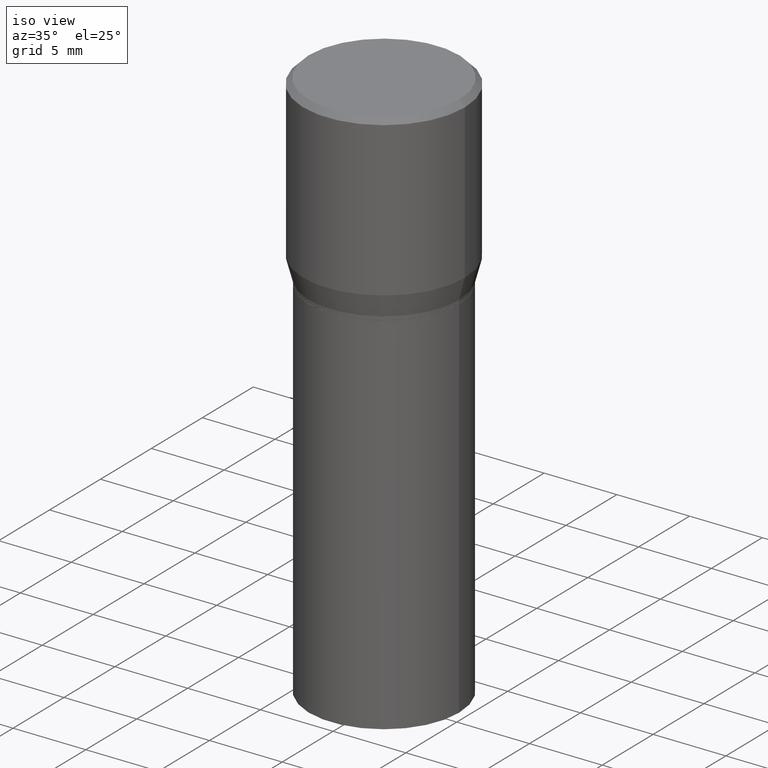
[diagram: clean part render]
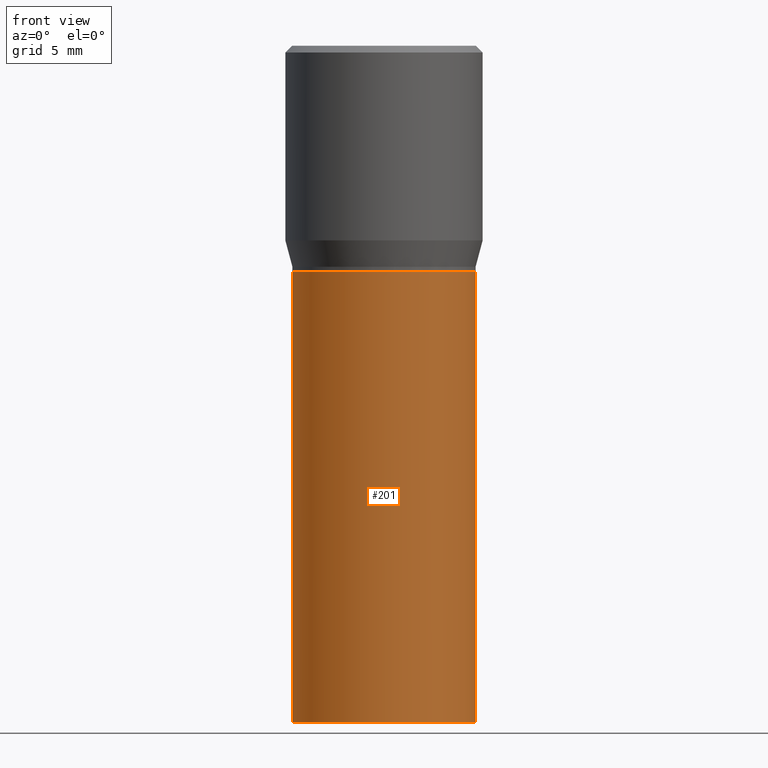
[diagram: tour spotlight — one face highlighted and labeled with its STEP entity id]
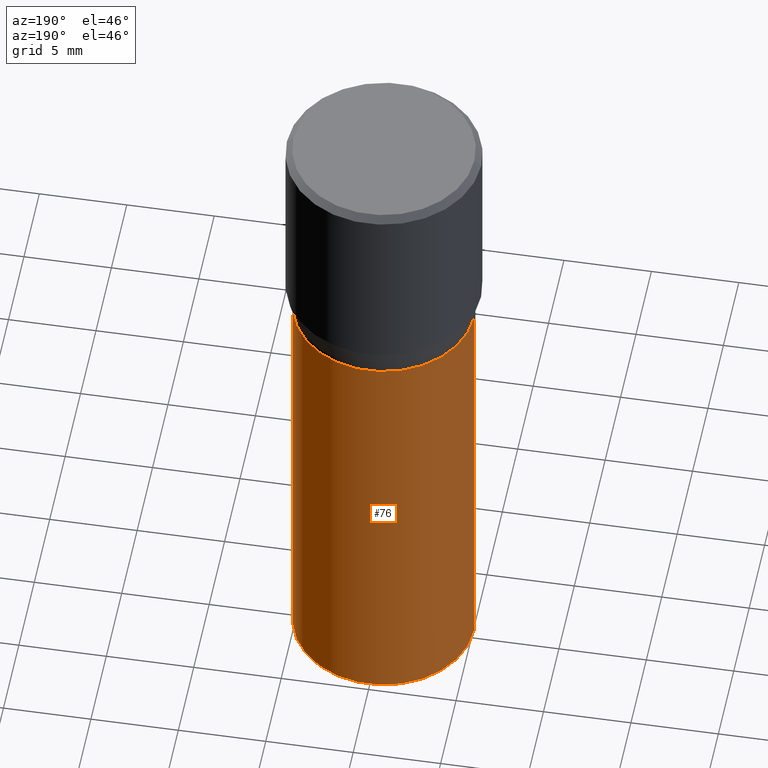
[diagram: tour spotlight — one face highlighted and labeled with its STEP entity id]
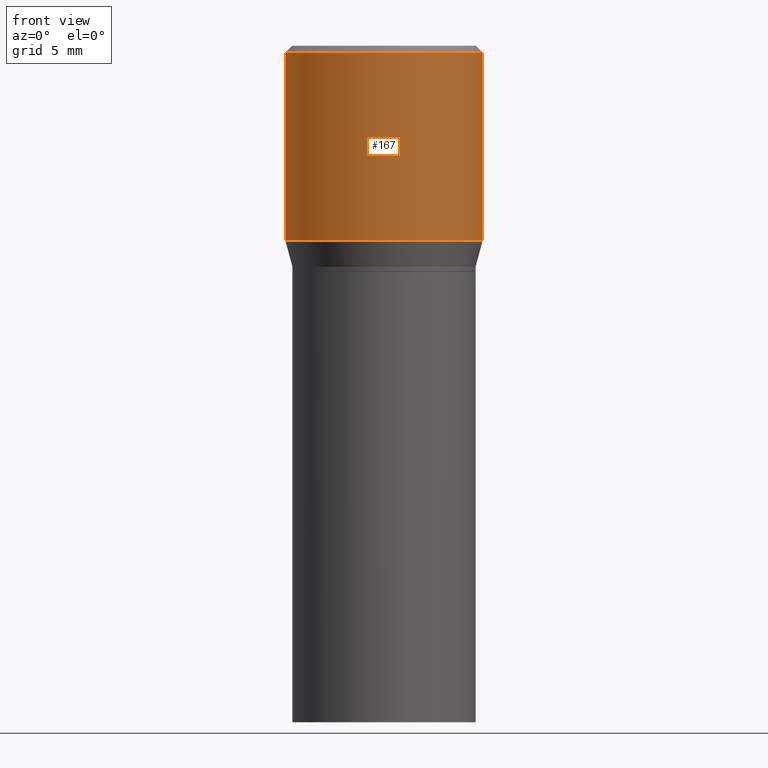
[diagram: tour spotlight — one face highlighted and labeled with its STEP entity id]
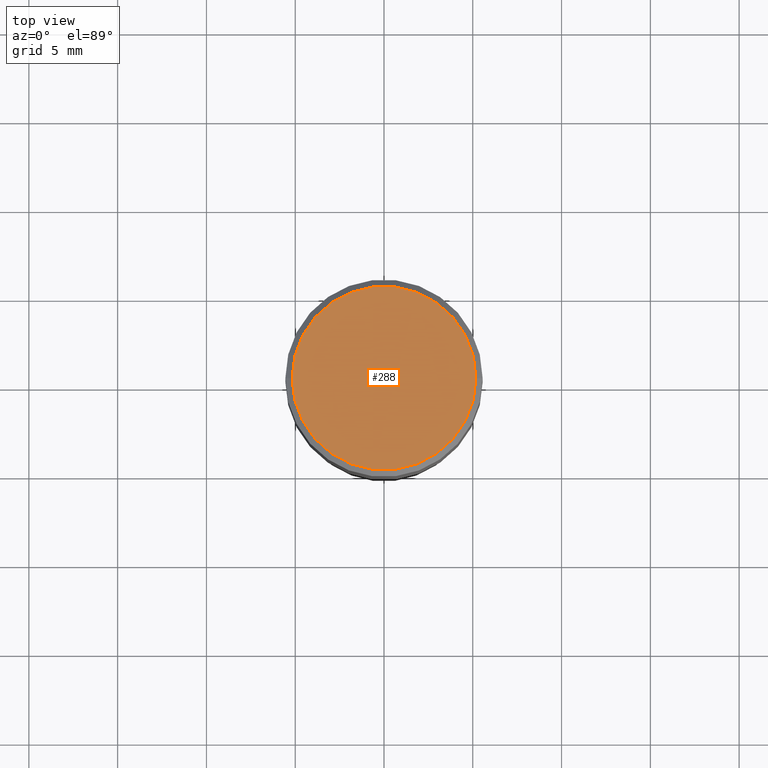
[diagram: tour spotlight — one face highlighted and labeled with its STEP entity id]
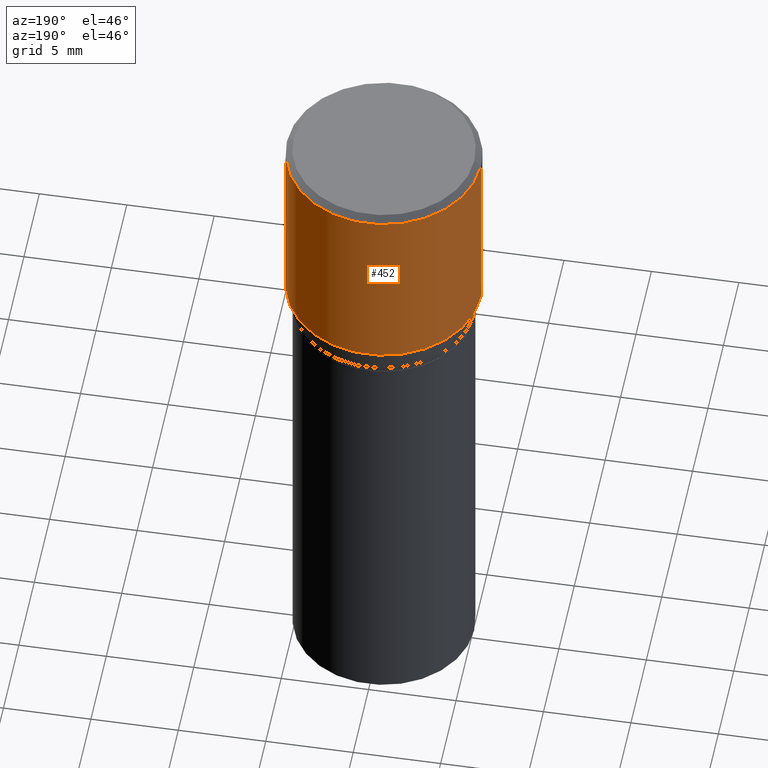
[diagram: tour spotlight — one face highlighted and labeled with its STEP entity id]
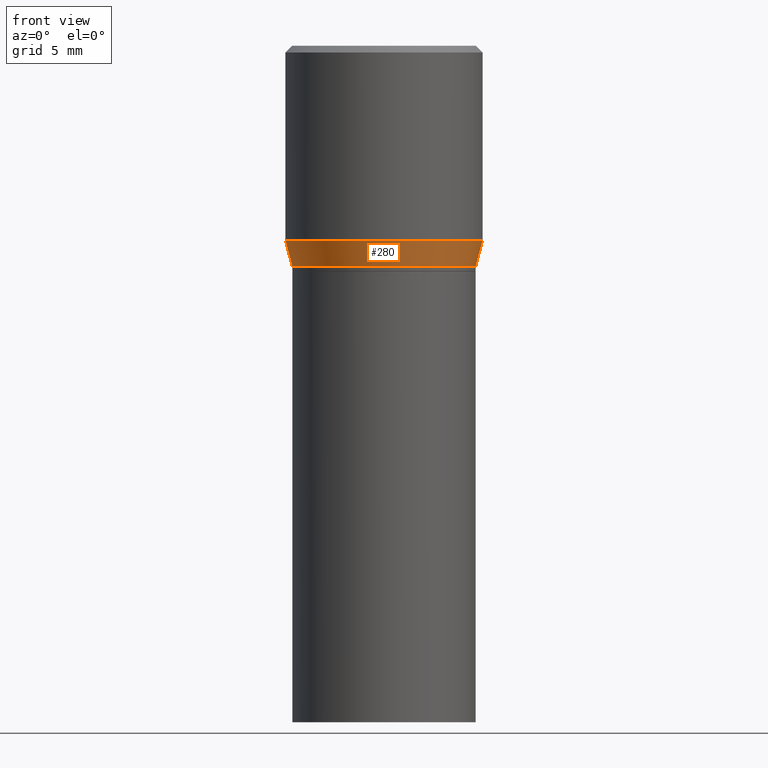
[diagram: tour spotlight — one face highlighted and labeled with its STEP entity id]
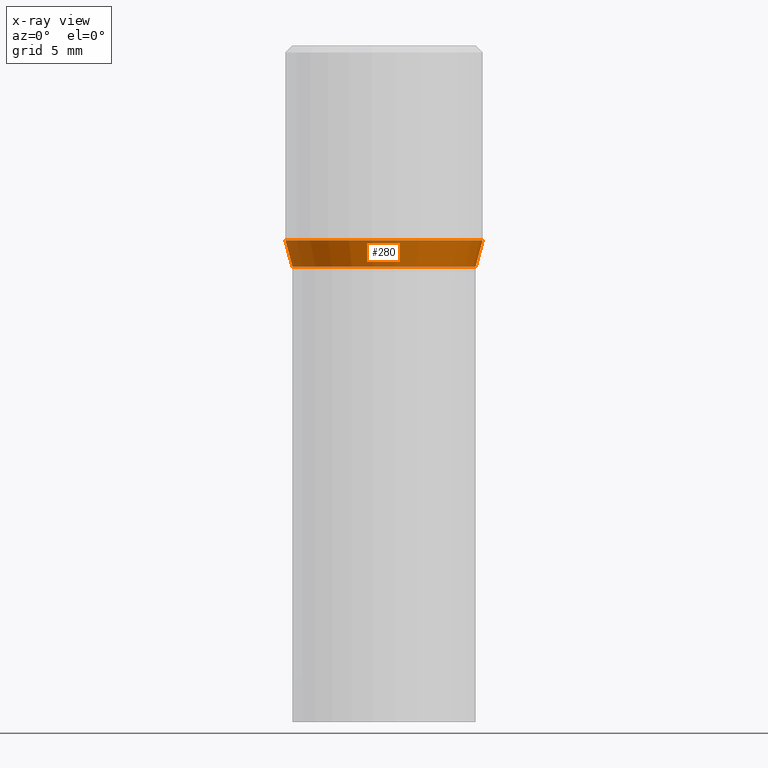
[diagram: x-ray of the same camera — body ghosted, this tour face saturated]
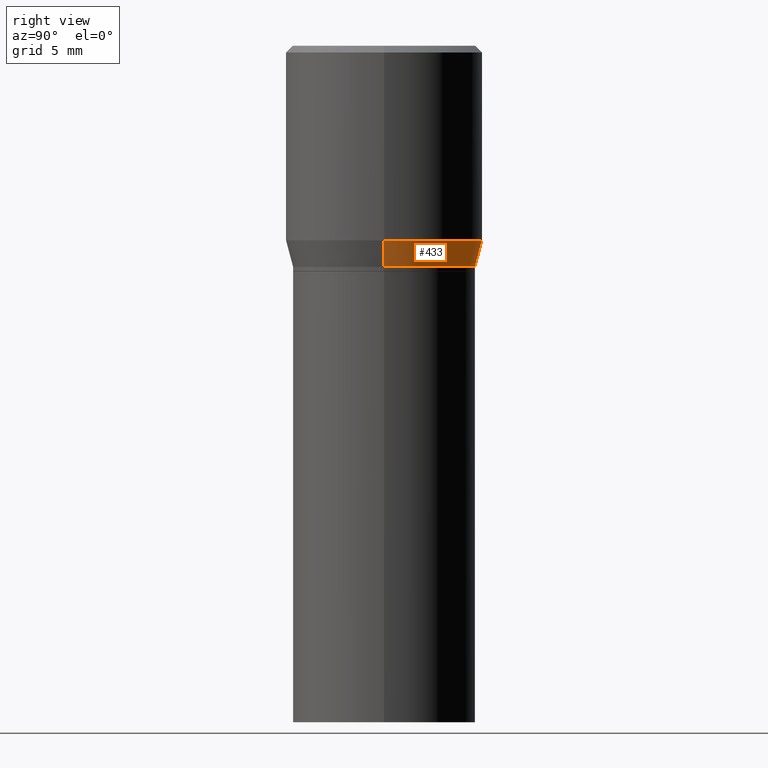
[diagram: tour spotlight — one face highlighted and labeled with its STEP entity id]
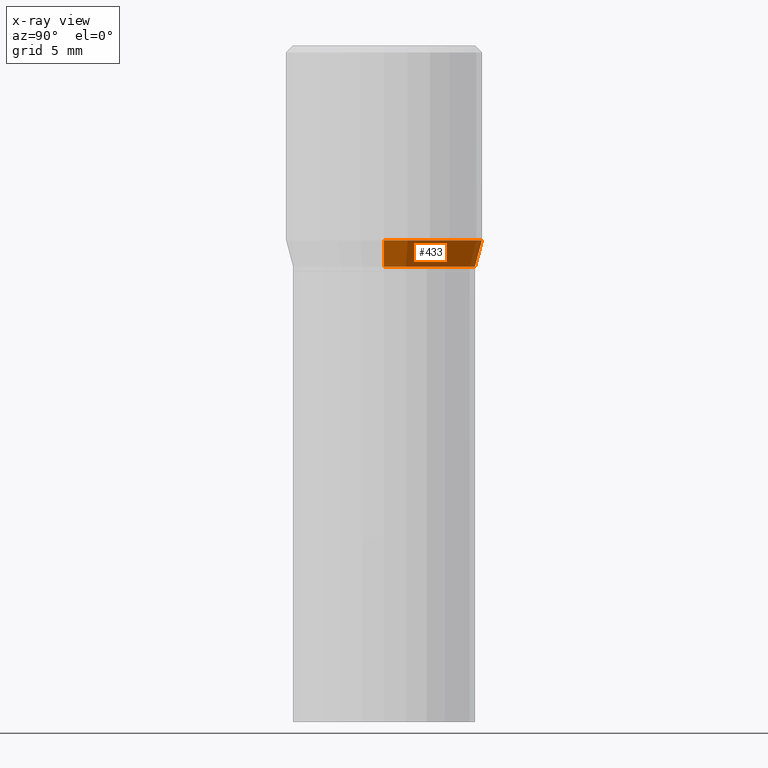
[diagram: x-ray of the same camera — body ghosted, this tour face saturated]
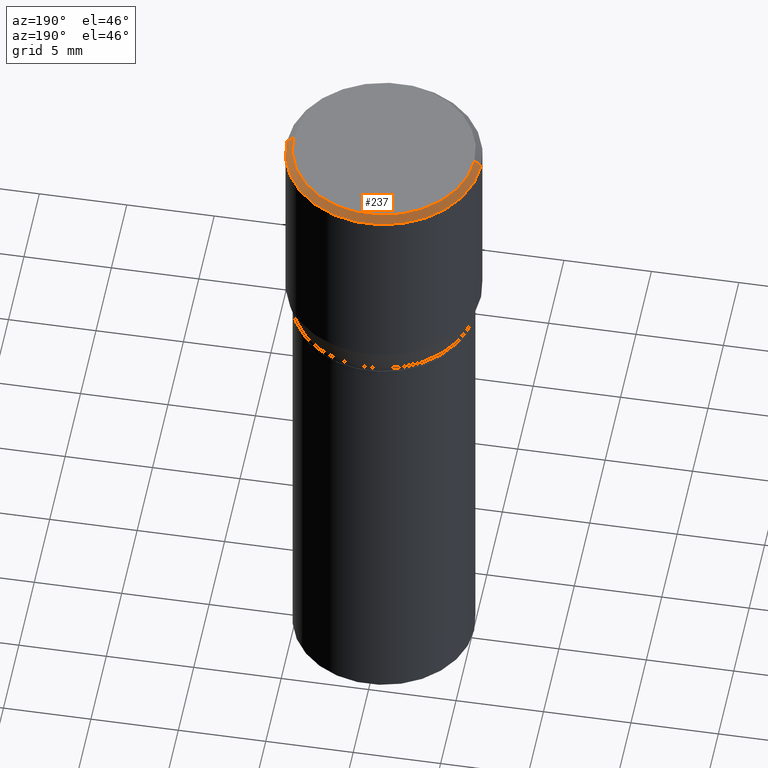
[diagram: tour spotlight — one face highlighted and labeled with its STEP entity id]
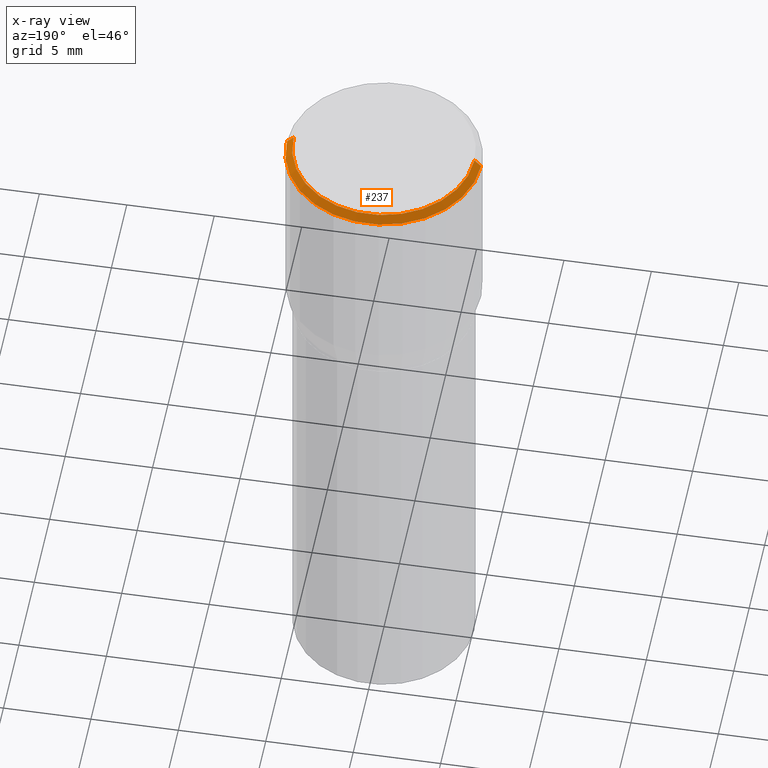
[diagram: x-ray of the same camera — body ghosted, this tour face saturated]
A machine part: a face-by-face anatomy tour. The part has 16 B-rep faces; the first image is the clean iso view, then the 8 largest visible faces are spotlighted one at a time (largest first), each with its STEP entity span.

Face 1 — front view, entity #201. In plain terms, the highlighted cylindrical surface (partial cylindrical patch) has radius 5.1587 mm, axis along (-0, 0, 1).
Definition (entity closure, byte-faithful):
#15 = CARTESIAN_POINT ( 'NONE',  ( -0.2031000000000000028, -2.048369042514382480E-15, -0.5000000000000001110 ) ) ;
#17 = VECTOR ( 'NONE', #394, 39.37007874015748143 ) ;
#19 = LINE ( 'NONE', #447, #87 ) ;
#24 = VERTEX_POINT ( 'NONE', #15 ) ;
#30 = CIRCLE ( 'NONE', #39, 0.2031000000000000028 ) ;
#39 = AXIS2_PLACEMENT_3D ( 'NONE', #315, #54, #387 ) ;
#54 = DIRECTION ( 'NONE',  ( -2.445468806185136597E-29, 3.491481338843145583E-15, 1.000000000000000000 ) ) ;
#69 = AXIS2_PLACEMENT_3D ( 'NONE', #102, #72, #219 ) ;
#72 = DIRECTION ( 'NONE',  ( -2.445468806185136597E-29, 3.491481338843145583E-15, 1.000000000000000000 ) ) ;
#85 = DIRECTION ( 'NONE',  ( 1.000000000000000000, -6.982962677686266711E-15, 4.876176775795935793E-29 ) ) ;
#87 = VECTOR ( 'NONE', #127, 39.37007874015748143 ) ;
#102 = CARTESIAN_POINT ( 'NONE',  ( 1.222734403092568719E-29, -1.745740669421573186E-15, -0.5000000000000001110 ) ) ;
#106 = CARTESIAN_POINT ( 'NONE',  ( 0.2031000000000000028, -3.163980389259653764E-15, -0.5000000000000001110 ) ) ;
#108 = CARTESIAN_POINT ( 'NONE',  ( 0.2031000000000000028, -6.655461728102798952E-15, -1.500000000000000222 ) ) ;
#112 = CARTESIAN_POINT ( 'NONE',  ( -0.2031000000000000028, -2.048369042514382480E-15, -1.500000000000000222 ) ) ;
#127 = DIRECTION ( 'NONE',  ( -2.445468806185136877E-29, 3.491481338843145188E-15, 1.000000000000000000 ) ) ;
#135 = FACE_OUTER_BOUND ( 'NONE', #424, .T. ) ;
#146 = VERTEX_POINT ( 'NONE', #106 ) ;
#155 = ORIENTED_EDGE ( 'NONE', *, *, #259, .T. ) ;
#181 = VERTEX_POINT ( 'NONE', #112 ) ;
#201 = ADVANCED_FACE ( 'NONE', ( #135 ), #426, .T. ) ;
#219 = DIRECTION ( 'NONE',  ( 1.000000000000000000, -6.982962677686265922E-15, 0.000000000000000000 ) ) ;
#234 = CARTESIAN_POINT ( 'NONE',  ( 0.000000000000000000, 0.000000000000000000, 0.000000000000000000 ) ) ;
#241 = AXIS2_PLACEMENT_3D ( 'NONE', #234, #308, #85 ) ;
#259 = EDGE_CURVE ( 'NONE', #181, #388, #30, .T. ) ;
#289 = ORIENTED_EDGE ( 'NONE', *, *, #301, .F. ) ;
#301 = EDGE_CURVE ( 'NONE', #181, #24, #312, .T. ) ;
#308 = DIRECTION ( 'NONE',  ( -2.445468806185136597E-29, 3.491481338843145583E-15, 1.000000000000000000 ) ) ;
#312 = LINE ( 'NONE', #454, #17 ) ;
#315 = CARTESIAN_POINT ( 'NONE',  ( 3.668203209277704895E-29, -5.237222008264718177E-15, -1.500000000000000222 ) ) ;
#340 = EDGE_CURVE ( 'NONE', #388, #146, #19, .T. ) ;
#353 = ORIENTED_EDGE ( 'NONE', *, *, #411, .F. ) ;
#356 = CIRCLE ( 'NONE', #69, 0.2031000000000000028 ) ;
#358 = ORIENTED_EDGE ( 'NONE', *, *, #340, .T. ) ;
#387 = DIRECTION ( 'NONE',  ( 1.000000000000000000, -6.982962677686264344E-15, 0.000000000000000000 ) ) ;
#388 = VERTEX_POINT ( 'NONE', #108 ) ;
#394 = DIRECTION ( 'NONE',  ( -2.445468806185136877E-29, 3.491481338843145188E-15, 1.000000000000000000 ) ) ;
#411 = EDGE_CURVE ( 'NONE', #24, #146, #356, .T. ) ;
#424 = EDGE_LOOP ( 'NONE', ( #289, #155, #358, #353 ) ) ;
#426 = CYLINDRICAL_SURFACE ( 'NONE', #241, 0.2031000000000000028 ) ;
#447 = CARTESIAN_POINT ( 'NONE',  ( 0.2031000000000000028, -1.418239719838080775E-15, 9.903515031641546145E-30 ) ) ;
#454 = CARTESIAN_POINT ( 'NONE',  ( -0.2031000000000000028, 1.443112296328763497E-15, -9.990357168307714203E-30 ) ) ;

Face 2 — auxiliary view, entity #76. In plain terms, the highlighted cylindrical surface (partial cylindrical patch) has radius 5.1587 mm, axis along (-0, 0, 1).
Definition (entity closure, byte-faithful):
#3 = AXIS2_PLACEMENT_3D ( 'NONE', #270, #342, #61 ) ;
#15 = CARTESIAN_POINT ( 'NONE',  ( -0.2031000000000000028, -2.048369042514382480E-15, -0.5000000000000001110 ) ) ;
#16 = FACE_OUTER_BOUND ( 'NONE', #348, .T. ) ;
#17 = VECTOR ( 'NONE', #394, 39.37007874015748143 ) ;
#19 = LINE ( 'NONE', #447, #87 ) ;
#24 = VERTEX_POINT ( 'NONE', #15 ) ;
#29 = DIRECTION ( 'NONE',  ( 1.000000000000000000, -6.982962677686265922E-15, 0.000000000000000000 ) ) ;
#40 = ORIENTED_EDGE ( 'NONE', *, *, #126, .F. ) ;
#61 = DIRECTION ( 'NONE',  ( 1.000000000000000000, -6.982962677686264344E-15, 0.000000000000000000 ) ) ;
#76 = ADVANCED_FACE ( 'NONE', ( #16 ), #125, .T. ) ;
#87 = VECTOR ( 'NONE', #127, 39.37007874015748143 ) ;
#105 = CIRCLE ( 'NONE', #138, 0.2031000000000000028 ) ;
#106 = CARTESIAN_POINT ( 'NONE',  ( 0.2031000000000000028, -3.163980389259653764E-15, -0.5000000000000001110 ) ) ;
#108 = CARTESIAN_POINT ( 'NONE',  ( 0.2031000000000000028, -6.655461728102798952E-15, -1.500000000000000222 ) ) ;
#112 = CARTESIAN_POINT ( 'NONE',  ( -0.2031000000000000028, -2.048369042514382480E-15, -1.500000000000000222 ) ) ;
#125 = CYLINDRICAL_SURFACE ( 'NONE', #240, 0.2031000000000000028 ) ;
#126 = EDGE_CURVE ( 'NONE', #146, #24, #105, .T. ) ;
#127 = DIRECTION ( 'NONE',  ( -2.445468806185136877E-29, 3.491481338843145188E-15, 1.000000000000000000 ) ) ;
#128 = ORIENTED_EDGE ( 'NONE', *, *, #302, .T. ) ;
#138 = AXIS2_PLACEMENT_3D ( 'NONE', #275, #355, #29 ) ;
#146 = VERTEX_POINT ( 'NONE', #106 ) ;
#181 = VERTEX_POINT ( 'NONE', #112 ) ;
#194 = CARTESIAN_POINT ( 'NONE',  ( 0.000000000000000000, 0.000000000000000000, 0.000000000000000000 ) ) ;
#221 = CIRCLE ( 'NONE', #3, 0.2031000000000000028 ) ;
#240 = AXIS2_PLACEMENT_3D ( 'NONE', #194, #419, #333 ) ;
#270 = CARTESIAN_POINT ( 'NONE',  ( 3.668203209277704895E-29, -5.237222008264718177E-15, -1.500000000000000222 ) ) ;
#275 = CARTESIAN_POINT ( 'NONE',  ( 1.222734403092568719E-29, -1.745740669421573186E-15, -0.5000000000000001110 ) ) ;
#301 = EDGE_CURVE ( 'NONE', #181, #24, #312, .T. ) ;
#302 = EDGE_CURVE ( 'NONE', #388, #181, #221, .T. ) ;
#312 = LINE ( 'NONE', #454, #17 ) ;
#333 = DIRECTION ( 'NONE',  ( 1.000000000000000000, -6.982962677686266711E-15, 4.876176775795935793E-29 ) ) ;
#340 = EDGE_CURVE ( 'NONE', #388, #146, #19, .T. ) ;
#342 = DIRECTION ( 'NONE',  ( -2.445468806185136597E-29, 3.491481338843145583E-15, 1.000000000000000000 ) ) ;
#348 = EDGE_LOOP ( 'NONE', ( #128, #350, #40, #455 ) ) ;
#350 = ORIENTED_EDGE ( 'NONE', *, *, #301, .T. ) ;
#355 = DIRECTION ( 'NONE',  ( -2.445468806185136597E-29, 3.491481338843145583E-15, 1.000000000000000000 ) ) ;
#388 = VERTEX_POINT ( 'NONE', #108 ) ;
#394 = DIRECTION ( 'NONE',  ( -2.445468806185136877E-29, 3.491481338843145188E-15, 1.000000000000000000 ) ) ;
#419 = DIRECTION ( 'NONE',  ( -2.445468806185136597E-29, 3.491481338843145583E-15, 1.000000000000000000 ) ) ;
#447 = CARTESIAN_POINT ( 'NONE',  ( 0.2031000000000000028, -1.418239719838080775E-15, 9.903515031641546145E-30 ) ) ;
#454 = CARTESIAN_POINT ( 'NONE',  ( -0.2031000000000000028, 1.443112296328763497E-15, -9.990357168307714203E-30 ) ) ;
#455 = ORIENTED_EDGE ( 'NONE', *, *, #340, .F. ) ;

Face 3 — front view, entity #167. In plain terms, the highlighted cylindrical surface (partial cylindrical patch) has radius 5.5562 mm, axis along (-0, 0, 1).
Definition (entity closure, byte-faithful):
#6 = DIRECTION ( 'NONE',  ( -2.445468806185136877E-29, 3.491481338843145188E-15, 1.000000000000000000 ) ) ;
#26 = EDGE_LOOP ( 'NONE', ( #286, #279, #188, #428 ) ) ;
#67 = LINE ( 'NONE', #176, #337 ) ;
#75 = AXIS2_PLACEMENT_3D ( 'NONE', #141, #151, #401 ) ;
#77 = VERTEX_POINT ( 'NONE', #163 ) ;
#110 = DIRECTION ( 'NONE',  ( 1.000000000000000000, -6.982962677686266711E-15, 4.876176775795935232E-29 ) ) ;
#116 = CARTESIAN_POINT ( 'NONE',  ( -0.2187500000000000000, 1.554312234475219157E-15, -1.076017050993260622E-29 ) ) ;
#124 = EDGE_CURVE ( 'NONE', #235, #77, #67, .T. ) ;
#129 = CIRCLE ( 'NONE', #75, 0.2187500000000000000 ) ;
#131 = VERTEX_POINT ( 'NONE', #466 ) ;
#136 = DIRECTION ( 'NONE',  ( -2.445468806185136877E-29, 3.491481338843145188E-15, 1.000000000000000000 ) ) ;
#141 = CARTESIAN_POINT ( 'NONE',  ( 1.055448208544146876E-29, -1.506900319041867721E-15, -0.4315934048615475138 ) ) ;
#144 = DIRECTION ( 'NONE',  ( -2.445468806185136597E-29, 3.491481338843145583E-15, 1.000000000000000000 ) ) ;
#148 = EDGE_CURVE ( 'NONE', #182, #131, #190, .T. ) ;
#151 = DIRECTION ( 'NONE',  ( -2.445468806185136597E-29, 3.491481338843145583E-15, 1.000000000000000000 ) ) ;
#152 = FACE_OUTER_BOUND ( 'NONE', #26, .T. ) ;
#160 = CIRCLE ( 'NONE', #248, 0.2187500000000000000 ) ;
#163 = CARTESIAN_POINT ( 'NONE',  ( 0.2187500000000000000, -1.579895305826517922E-15, -0.01499999999999999944 ) ) ;
#167 = ADVANCED_FACE ( 'NONE', ( #152 ), #287, .T. ) ;
#176 = CARTESIAN_POINT ( 'NONE',  ( 0.2187500000000000000, -1.527523085743870843E-15, 1.066663669705360885E-29 ) ) ;
#180 = DIRECTION ( 'NONE',  ( 1.000000000000000000, -6.982962677686266711E-15, 0.000000000000000000 ) ) ;
#182 = VERTEX_POINT ( 'NONE', #330 ) ;
#188 = ORIENTED_EDGE ( 'NONE', *, *, #124, .T. ) ;
#190 = LINE ( 'NONE', #116, #384 ) ;
#202 = CARTESIAN_POINT ( 'NONE',  ( 3.668203209277705088E-31, -5.237222008264718399E-17, -0.01499999999999999944 ) ) ;
#232 = AXIS2_PLACEMENT_3D ( 'NONE', #379, #334, #110 ) ;
#235 = VERTEX_POINT ( 'NONE', #392 ) ;
#248 = AXIS2_PLACEMENT_3D ( 'NONE', #202, #144, #180 ) ;
#279 = ORIENTED_EDGE ( 'NONE', *, *, #398, .T. ) ;
#286 = ORIENTED_EDGE ( 'NONE', *, *, #148, .F. ) ;
#287 = CYLINDRICAL_SURFACE ( 'NONE', #232, 0.2187500000000000000 ) ;
#330 = CARTESIAN_POINT ( 'NONE',  ( -0.2187500000000000000, 4.741191543335144142E-17, -0.4315934048615475138 ) ) ;
#334 = DIRECTION ( 'NONE',  ( -2.445468806185136597E-29, 3.491481338843145583E-15, 1.000000000000000000 ) ) ;
#337 = VECTOR ( 'NONE', #136, 39.37007874015748143 ) ;
#377 = EDGE_CURVE ( 'NONE', #131, #77, #160, .T. ) ;
#379 = CARTESIAN_POINT ( 'NONE',  ( 0.000000000000000000, 0.000000000000000000, 0.000000000000000000 ) ) ;
#384 = VECTOR ( 'NONE', #6, 39.37007874015748143 ) ;
#392 = CARTESIAN_POINT ( 'NONE',  ( 0.2187500000000000000, -3.034423404785738170E-15, -0.4315934048615475138 ) ) ;
#398 = EDGE_CURVE ( 'NONE', #182, #235, #129, .T. ) ;
#401 = DIRECTION ( 'NONE',  ( 1.000000000000000000, -6.982962677686265133E-15, 0.000000000000000000 ) ) ;
#428 = ORIENTED_EDGE ( 'NONE', *, *, #377, .F. ) ;
#466 = CARTESIAN_POINT ( 'NONE',  ( -0.2187500000000000000, 7.746759649129616577E-16, -0.01499999999999999944 ) ) ;

Face 4 — top view, entity #288. In plain terms, the highlighted planar face has unit normal (0, -0, -1).
Definition (entity closure, byte-faithful):
#13 = EDGE_CURVE ( 'NONE', #314, #408, #406, .T. ) ;
#53 = CARTESIAN_POINT ( 'NONE',  ( 0.2037499999999999867, -1.475466312070559275E-15, 1.060151966214670170E-16 ) ) ;
#88 = AXIS2_PLACEMENT_3D ( 'NONE', #156, #373, #118 ) ;
#114 = CIRCLE ( 'NONE', #416, 0.2037499999999999867 ) ;
#118 = DIRECTION ( 'NONE',  ( 1.000000000000000000, -6.982962677686266711E-15, 4.875065411617369217E-29 ) ) ;
#156 = CARTESIAN_POINT ( 'NONE',  ( -2.592568563193567003E-45, 3.701500806376036554E-31, 1.060151966214568974E-16 ) ) ;
#198 = CARTESIAN_POINT ( 'NONE',  ( -2.592568563193567003E-45, 3.701500806376036554E-31, 1.060151966214568974E-16 ) ) ;
#200 = DIRECTION ( 'NONE',  ( 2.438088387897960049E-29, -3.491481338843145188E-15, -1.000000000000000000 ) ) ;
#204 = DIRECTION ( 'NONE',  ( -1.000000000000000000, 6.982962677686265922E-15, -4.876176775795935793E-29 ) ) ;
#236 = DIRECTION ( 'NONE',  ( 1.000000000000000000, -6.982962677686266711E-15, 4.875065411617369217E-29 ) ) ;
#242 = CARTESIAN_POINT ( 'NONE',  ( 1.422778645578576487E-15, 0.2037499999999999867, -6.583817244785623957E-16 ) ) ;
#258 = AXIS2_PLACEMENT_3D ( 'NONE', #242, #200, #204 ) ;
#260 = ORIENTED_EDGE ( 'NONE', *, *, #13, .T. ) ;
#288 = ADVANCED_FACE ( 'NONE', ( #385 ), #450, .F. ) ;
#314 = VERTEX_POINT ( 'NONE', #53 ) ;
#336 = EDGE_CURVE ( 'NONE', #408, #314, #114, .T. ) ;
#341 = DIRECTION ( 'NONE',  ( -2.445468806185136597E-29, 3.491481338843145583E-15, 1.000000000000000000 ) ) ;
#359 = CARTESIAN_POINT ( 'NONE',  ( -0.2037499999999999867, 1.448964755619900421E-15, 1.060151966214468518E-16 ) ) ;
#373 = DIRECTION ( 'NONE',  ( -2.445468806185136597E-29, 3.491481338843145583E-15, 1.000000000000000000 ) ) ;
#385 = FACE_OUTER_BOUND ( 'NONE', #448, .T. ) ;
#406 = CIRCLE ( 'NONE', #88, 0.2037499999999999867 ) ;
#408 = VERTEX_POINT ( 'NONE', #359 ) ;
#413 = ORIENTED_EDGE ( 'NONE', *, *, #336, .T. ) ;
#416 = AXIS2_PLACEMENT_3D ( 'NONE', #198, #341, #236 ) ;
#448 = EDGE_LOOP ( 'NONE', ( #413, #260 ) ) ;
#450 = PLANE ( 'NONE',  #258 ) ;

Face 5 — auxiliary view, entity #452. In plain terms, the highlighted cylindrical surface (partial cylindrical patch) has radius 5.5562 mm, axis along (-0, 0, 1).
Definition (entity closure, byte-faithful):
#6 = DIRECTION ( 'NONE',  ( -2.445468806185136877E-29, 3.491481338843145188E-15, 1.000000000000000000 ) ) ;
#27 = DIRECTION ( 'NONE',  ( 1.000000000000000000, -6.982962677686266711E-15, 0.000000000000000000 ) ) ;
#34 = DIRECTION ( 'NONE',  ( -2.445468806185136597E-29, 3.491481338843145583E-15, 1.000000000000000000 ) ) ;
#60 = EDGE_LOOP ( 'NONE', ( #133, #282, #65, #78 ) ) ;
#65 = ORIENTED_EDGE ( 'NONE', *, *, #121, .F. ) ;
#67 = LINE ( 'NONE', #176, #337 ) ;
#77 = VERTEX_POINT ( 'NONE', #163 ) ;
#78 = ORIENTED_EDGE ( 'NONE', *, *, #124, .F. ) ;
#86 = EDGE_CURVE ( 'NONE', #235, #182, #368, .T. ) ;
#116 = CARTESIAN_POINT ( 'NONE',  ( -0.2187500000000000000, 1.554312234475219157E-15, -1.076017050993260622E-29 ) ) ;
#121 = EDGE_CURVE ( 'NONE', #77, #131, #463, .T. ) ;
#124 = EDGE_CURVE ( 'NONE', #235, #77, #67, .T. ) ;
#131 = VERTEX_POINT ( 'NONE', #466 ) ;
#133 = ORIENTED_EDGE ( 'NONE', *, *, #86, .T. ) ;
#136 = DIRECTION ( 'NONE',  ( -2.445468806185136877E-29, 3.491481338843145188E-15, 1.000000000000000000 ) ) ;
#148 = EDGE_CURVE ( 'NONE', #182, #131, #190, .T. ) ;
#163 = CARTESIAN_POINT ( 'NONE',  ( 0.2187500000000000000, -1.579895305826517922E-15, -0.01499999999999999944 ) ) ;
#176 = CARTESIAN_POINT ( 'NONE',  ( 0.2187500000000000000, -1.527523085743870843E-15, 1.066663669705360885E-29 ) ) ;
#182 = VERTEX_POINT ( 'NONE', #330 ) ;
#189 = CYLINDRICAL_SURFACE ( 'NONE', #338, 0.2187500000000000000 ) ;
#190 = LINE ( 'NONE', #116, #384 ) ;
#211 = DIRECTION ( 'NONE',  ( -2.445468806185136597E-29, 3.491481338843145583E-15, 1.000000000000000000 ) ) ;
#220 = AXIS2_PLACEMENT_3D ( 'NONE', #457, #211, #27 ) ;
#235 = VERTEX_POINT ( 'NONE', #392 ) ;
#243 = DIRECTION ( 'NONE',  ( 1.000000000000000000, -6.982962677686265133E-15, 0.000000000000000000 ) ) ;
#253 = DIRECTION ( 'NONE',  ( 1.000000000000000000, -6.982962677686266711E-15, 4.876176775795935232E-29 ) ) ;
#282 = ORIENTED_EDGE ( 'NONE', *, *, #148, .T. ) ;
#285 = DIRECTION ( 'NONE',  ( -2.445468806185136597E-29, 3.491481338843145583E-15, 1.000000000000000000 ) ) ;
#330 = CARTESIAN_POINT ( 'NONE',  ( -0.2187500000000000000, 4.741191543335144142E-17, -0.4315934048615475138 ) ) ;
#337 = VECTOR ( 'NONE', #136, 39.37007874015748143 ) ;
#338 = AXIS2_PLACEMENT_3D ( 'NONE', #435, #285, #253 ) ;
#345 = AXIS2_PLACEMENT_3D ( 'NONE', #362, #34, #243 ) ;
#362 = CARTESIAN_POINT ( 'NONE',  ( 1.055448208544146876E-29, -1.506900319041867721E-15, -0.4315934048615475138 ) ) ;
#368 = CIRCLE ( 'NONE', #345, 0.2187500000000000000 ) ;
#384 = VECTOR ( 'NONE', #6, 39.37007874015748143 ) ;
#392 = CARTESIAN_POINT ( 'NONE',  ( 0.2187500000000000000, -3.034423404785738170E-15, -0.4315934048615475138 ) ) ;
#403 = FACE_OUTER_BOUND ( 'NONE', #60, .T. ) ;
#435 = CARTESIAN_POINT ( 'NONE',  ( 0.000000000000000000, 0.000000000000000000, 0.000000000000000000 ) ) ;
#452 = ADVANCED_FACE ( 'NONE', ( #403 ), #189, .T. ) ;
#457 = CARTESIAN_POINT ( 'NONE',  ( 3.668203209277705088E-31, -5.237222008264718399E-17, -0.01499999999999999944 ) ) ;
#463 = CIRCLE ( 'NONE', #220, 0.2187500000000000000 ) ;
#466 = CARTESIAN_POINT ( 'NONE',  ( -0.2187500000000000000, 7.746759649129616577E-16, -0.01499999999999999944 ) ) ;

Face 6 — front view, entity #280. An x-ray twin of the same camera follows (body ghosted, this face saturated) — the face is partly hidden behind the body. In plain terms, the highlighted conical surface has half-angle 15 deg.
Definition (entity closure, byte-faithful):
#11 = AXIS2_PLACEMENT_3D ( 'NONE', #58, #96, #267 ) ;
#12 = EDGE_CURVE ( 'NONE', #157, #235, #120, .T. ) ;
#38 = VECTOR ( 'NONE', #412, 39.37007874015748854 ) ;
#57 = EDGE_LOOP ( 'NONE', ( #319, #137, #344, #351 ) ) ;
#58 = CARTESIAN_POINT ( 'NONE',  ( 1.198279715030717173E-29, -1.710825856033141537E-15, -0.4900000000000001021 ) ) ;
#75 = AXIS2_PLACEMENT_3D ( 'NONE', #141, #151, #401 ) ;
#80 = EDGE_CURVE ( 'NONE', #371, #157, #247, .T. ) ;
#94 = AXIS2_PLACEMENT_3D ( 'NONE', #439, #122, #263 ) ;
#96 = DIRECTION ( 'NONE',  ( -2.445468806185136597E-29, 3.491481338843145583E-15, 1.000000000000000000 ) ) ;
#120 = LINE ( 'NONE', #446, #38 ) ;
#122 = DIRECTION ( 'NONE',  ( -2.445468806185136597E-29, 3.491481338843145583E-15, 1.000000000000000000 ) ) ;
#129 = CIRCLE ( 'NONE', #75, 0.2187500000000000000 ) ;
#130 = CARTESIAN_POINT ( 'NONE',  ( -0.2031000000000000583, -1.101508221355132898E-16, -0.4900000000000001021 ) ) ;
#137 = ORIENTED_EDGE ( 'NONE', *, *, #80, .T. ) ;
#141 = CARTESIAN_POINT ( 'NONE',  ( 1.055448208544146876E-29, -1.506900319041867721E-15, -0.4315934048615475138 ) ) ;
#151 = DIRECTION ( 'NONE',  ( -2.445468806185136597E-29, 3.491481338843145583E-15, 1.000000000000000000 ) ) ;
#157 = VERTEX_POINT ( 'NONE', #370 ) ;
#159 = CONICAL_SURFACE ( 'NONE', #11, 0.2031000000000000583, 0.2617993877991499074 ) ;
#169 = DIRECTION ( 'NONE',  ( -0.2588190451025211836, 5.211531920934547886E-15, 0.9659258262890679791 ) ) ;
#182 = VERTEX_POINT ( 'NONE', #330 ) ;
#235 = VERTEX_POINT ( 'NONE', #392 ) ;
#247 = CIRCLE ( 'NONE', #94, 0.2031000000000000583 ) ;
#263 = DIRECTION ( 'NONE',  ( 1.000000000000000000, -6.982962677686265922E-15, 0.000000000000000000 ) ) ;
#267 = DIRECTION ( 'NONE',  ( 1.000000000000000000, -6.982962677686265922E-15, 0.000000000000000000 ) ) ;
#277 = VECTOR ( 'NONE', #169, 39.37007874015748854 ) ;
#280 = ADVANCED_FACE ( 'NONE', ( #343 ), #159, .T. ) ;
#319 = ORIENTED_EDGE ( 'NONE', *, *, #363, .F. ) ;
#330 = CARTESIAN_POINT ( 'NONE',  ( -0.2187500000000000000, 4.741191543335144142E-17, -0.4315934048615475138 ) ) ;
#343 = FACE_OUTER_BOUND ( 'NONE', #57, .T. ) ;
#344 = ORIENTED_EDGE ( 'NONE', *, *, #12, .T. ) ;
#351 = ORIENTED_EDGE ( 'NONE', *, *, #398, .F. ) ;
#363 = EDGE_CURVE ( 'NONE', #371, #182, #420, .T. ) ;
#370 = CARTESIAN_POINT ( 'NONE',  ( 0.2031000000000000583, -3.129065575871222509E-15, -0.4900000000000001021 ) ) ;
#371 = VERTEX_POINT ( 'NONE', #130 ) ;
#389 = CARTESIAN_POINT ( 'NONE',  ( -0.2031000000000000583, -2.677135597043777931E-16, -0.4900000000000001021 ) ) ;
#392 = CARTESIAN_POINT ( 'NONE',  ( 0.2187500000000000000, -3.034423404785738170E-15, -0.4315934048615475138 ) ) ;
#398 = EDGE_CURVE ( 'NONE', #182, #235, #129, .T. ) ;
#401 = DIRECTION ( 'NONE',  ( 1.000000000000000000, -6.982962677686265133E-15, 0.000000000000000000 ) ) ;
#412 = DIRECTION ( 'NONE',  ( 0.2588190451025211836, 1.565188264969622559E-15, 0.9659258262890679791 ) ) ;
#420 = LINE ( 'NONE', #389, #277 ) ;
#439 = CARTESIAN_POINT ( 'NONE',  ( 1.198279715030717173E-29, -1.710825856033141537E-15, -0.4900000000000001021 ) ) ;
#446 = CARTESIAN_POINT ( 'NONE',  ( 0.2031000000000000583, -3.129065575871222509E-15, -0.4900000000000001021 ) ) ;

Face 7 — right view, entity #433. An x-ray twin of the same camera follows (body ghosted, this face saturated) — the face is partly hidden behind the body. In plain terms, the highlighted conical surface has half-angle 15 deg.
Definition (entity closure, byte-faithful):
#12 = EDGE_CURVE ( 'NONE', #157, #235, #120, .T. ) ;
#34 = DIRECTION ( 'NONE',  ( -2.445468806185136597E-29, 3.491481338843145583E-15, 1.000000000000000000 ) ) ;
#38 = VECTOR ( 'NONE', #412, 39.37007874015748854 ) ;
#55 = ORIENTED_EDGE ( 'NONE', *, *, #86, .F. ) ;
#86 = EDGE_CURVE ( 'NONE', #235, #182, #368, .T. ) ;
#90 = DIRECTION ( 'NONE',  ( -2.445468806185136597E-29, 3.491481338843145583E-15, 1.000000000000000000 ) ) ;
#99 = FACE_OUTER_BOUND ( 'NONE', #364, .T. ) ;
#113 = ORIENTED_EDGE ( 'NONE', *, *, #363, .T. ) ;
#120 = LINE ( 'NONE', #446, #38 ) ;
#130 = CARTESIAN_POINT ( 'NONE',  ( -0.2031000000000000583, -1.101508221355132898E-16, -0.4900000000000001021 ) ) ;
#157 = VERTEX_POINT ( 'NONE', #370 ) ;
#169 = DIRECTION ( 'NONE',  ( -0.2588190451025211836, 5.211531920934547886E-15, 0.9659258262890679791 ) ) ;
#175 = CARTESIAN_POINT ( 'NONE',  ( 1.198279715030717173E-29, -1.710825856033141537E-15, -0.4900000000000001021 ) ) ;
#179 = AXIS2_PLACEMENT_3D ( 'NONE', #278, #245, #372 ) ;
#182 = VERTEX_POINT ( 'NONE', #330 ) ;
#192 = EDGE_CURVE ( 'NONE', #157, #371, #318, .T. ) ;
#210 = ORIENTED_EDGE ( 'NONE', *, *, #12, .F. ) ;
#235 = VERTEX_POINT ( 'NONE', #392 ) ;
#243 = DIRECTION ( 'NONE',  ( 1.000000000000000000, -6.982962677686265133E-15, 0.000000000000000000 ) ) ;
#245 = DIRECTION ( 'NONE',  ( -2.445468806185136597E-29, 3.491481338843145583E-15, 1.000000000000000000 ) ) ;
#277 = VECTOR ( 'NONE', #169, 39.37007874015748854 ) ;
#278 = CARTESIAN_POINT ( 'NONE',  ( 1.198279715030717173E-29, -1.710825856033141537E-15, -0.4900000000000001021 ) ) ;
#311 = ORIENTED_EDGE ( 'NONE', *, *, #192, .T. ) ;
#318 = CIRCLE ( 'NONE', #437, 0.2031000000000000583 ) ;
#330 = CARTESIAN_POINT ( 'NONE',  ( -0.2187500000000000000, 4.741191543335144142E-17, -0.4315934048615475138 ) ) ;
#345 = AXIS2_PLACEMENT_3D ( 'NONE', #362, #34, #243 ) ;
#362 = CARTESIAN_POINT ( 'NONE',  ( 1.055448208544146876E-29, -1.506900319041867721E-15, -0.4315934048615475138 ) ) ;
#363 = EDGE_CURVE ( 'NONE', #371, #182, #420, .T. ) ;
#364 = EDGE_LOOP ( 'NONE', ( #311, #113, #55, #210 ) ) ;
#368 = CIRCLE ( 'NONE', #345, 0.2187500000000000000 ) ;
#370 = CARTESIAN_POINT ( 'NONE',  ( 0.2031000000000000583, -3.129065575871222509E-15, -0.4900000000000001021 ) ) ;
#371 = VERTEX_POINT ( 'NONE', #130 ) ;
#372 = DIRECTION ( 'NONE',  ( 1.000000000000000000, -6.982962677686265922E-15, 0.000000000000000000 ) ) ;
#383 = CONICAL_SURFACE ( 'NONE', #179, 0.2031000000000000583, 0.2617993877991499074 ) ;
#389 = CARTESIAN_POINT ( 'NONE',  ( -0.2031000000000000583, -2.677135597043777931E-16, -0.4900000000000001021 ) ) ;
#392 = CARTESIAN_POINT ( 'NONE',  ( 0.2187500000000000000, -3.034423404785738170E-15, -0.4315934048615475138 ) ) ;
#412 = DIRECTION ( 'NONE',  ( 0.2588190451025211836, 1.565188264969622559E-15, 0.9659258262890679791 ) ) ;
#420 = LINE ( 'NONE', #389, #277 ) ;
#433 = ADVANCED_FACE ( 'NONE', ( #99 ), #383, .T. ) ;
#437 = AXIS2_PLACEMENT_3D ( 'NONE', #175, #90, #460 ) ;
#446 = CARTESIAN_POINT ( 'NONE',  ( 0.2031000000000000583, -3.129065575871222509E-15, -0.4900000000000001021 ) ) ;
#460 = DIRECTION ( 'NONE',  ( 1.000000000000000000, -6.982962677686265922E-15, 0.000000000000000000 ) ) ;

Face 8 — auxiliary view, entity #237. An x-ray twin of the same camera follows (body ghosted, this face saturated) — the face is partly hidden behind the body. In plain terms, the highlighted conical surface has half-angle 45 deg.
Definition (entity closure, byte-faithful):
#13 = EDGE_CURVE ( 'NONE', #314, #408, #406, .T. ) ;
#18 = LINE ( 'NONE', #168, #293 ) ;
#22 = DIRECTION ( 'NONE',  ( -1.000000000000000000, 6.982962677686266711E-15, 0.000000000000000000 ) ) ;
#27 = DIRECTION ( 'NONE',  ( 1.000000000000000000, -6.982962677686266711E-15, 0.000000000000000000 ) ) ;
#36 = ORIENTED_EDGE ( 'NONE', *, *, #13, .F. ) ;
#50 = LINE ( 'NONE', #228, #449 ) ;
#53 = CARTESIAN_POINT ( 'NONE',  ( 0.2037499999999999867, -1.475466312070559275E-15, 1.060151966214670170E-16 ) ) ;
#71 = EDGE_CURVE ( 'NONE', #408, #131, #50, .T. ) ;
#77 = VERTEX_POINT ( 'NONE', #163 ) ;
#88 = AXIS2_PLACEMENT_3D ( 'NONE', #156, #373, #118 ) ;
#92 = DIRECTION ( 'NONE',  ( 0.7071067811865452413, -7.319954787623248157E-15, -0.7071067811865497932 ) ) ;
#118 = DIRECTION ( 'NONE',  ( 1.000000000000000000, -6.982962677686266711E-15, 4.875065411617369217E-29 ) ) ;
#121 = EDGE_CURVE ( 'NONE', #77, #131, #463, .T. ) ;
#131 = VERTEX_POINT ( 'NONE', #466 ) ;
#134 = ORIENTED_EDGE ( 'NONE', *, *, #71, .F. ) ;
#156 = CARTESIAN_POINT ( 'NONE',  ( -2.592568563193567003E-45, 3.701500806376036554E-31, 1.060151966214568974E-16 ) ) ;
#163 = CARTESIAN_POINT ( 'NONE',  ( 0.2187500000000000000, -1.579895305826517922E-15, -0.01499999999999999944 ) ) ;
#168 = CARTESIAN_POINT ( 'NONE',  ( 0.2187500000000000000, -1.553106157095169608E-15, -0.01499999999999999944 ) ) ;
#203 = AXIS2_PLACEMENT_3D ( 'NONE', #262, #349, #22 ) ;
#211 = DIRECTION ( 'NONE',  ( -2.445468806185136597E-29, 3.491481338843145583E-15, 1.000000000000000000 ) ) ;
#220 = AXIS2_PLACEMENT_3D ( 'NONE', #457, #211, #27 ) ;
#228 = CARTESIAN_POINT ( 'NONE',  ( -0.2187500000000000000, 1.475150865661223567E-15, -0.01499999999999999944 ) ) ;
#233 = DIRECTION ( 'NONE',  ( -0.7071067811865452413, 2.468850131082233000E-15, -0.7071067811865497932 ) ) ;
#237 = ADVANCED_FACE ( 'NONE', ( #451 ), #269, .T. ) ;
#255 = EDGE_LOOP ( 'NONE', ( #36, #402, #395, #134 ) ) ;
#262 = CARTESIAN_POINT ( 'NONE',  ( 3.668203209277705088E-31, -5.237222008264718399E-17, -0.01499999999999999944 ) ) ;
#269 = CONICAL_SURFACE ( 'NONE', #203, 0.2187500000000000000, 0.7853981633974450594 ) ;
#293 = VECTOR ( 'NONE', #92, 39.37007874015748143 ) ;
#314 = VERTEX_POINT ( 'NONE', #53 ) ;
#339 = EDGE_CURVE ( 'NONE', #314, #77, #18, .T. ) ;
#349 = DIRECTION ( 'NONE',  ( 2.445468806185136597E-29, -3.491481338843145583E-15, -1.000000000000000000 ) ) ;
#359 = CARTESIAN_POINT ( 'NONE',  ( -0.2037499999999999867, 1.448964755619900421E-15, 1.060151966214468518E-16 ) ) ;
#373 = DIRECTION ( 'NONE',  ( -2.445468806185136597E-29, 3.491481338843145583E-15, 1.000000000000000000 ) ) ;
#395 = ORIENTED_EDGE ( 'NONE', *, *, #121, .T. ) ;
#402 = ORIENTED_EDGE ( 'NONE', *, *, #339, .T. ) ;
#406 = CIRCLE ( 'NONE', #88, 0.2037499999999999867 ) ;
#408 = VERTEX_POINT ( 'NONE', #359 ) ;
#449 = VECTOR ( 'NONE', #233, 39.37007874015748143 ) ;
#451 = FACE_OUTER_BOUND ( 'NONE', #255, .T. ) ;
#457 = CARTESIAN_POINT ( 'NONE',  ( 3.668203209277705088E-31, -5.237222008264718399E-17, -0.01499999999999999944 ) ) ;
#463 = CIRCLE ( 'NONE', #220, 0.2187500000000000000 ) ;
#466 = CARTESIAN_POINT ( 'NONE',  ( -0.2187500000000000000, 7.746759649129616577E-16, -0.01499999999999999944 ) ) ;